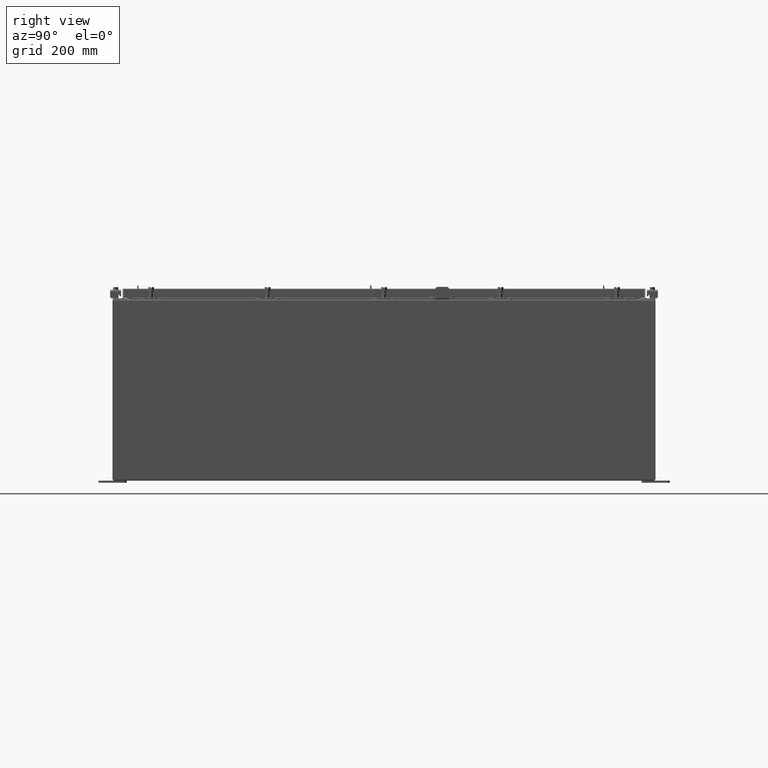
[diagram: clean part render]
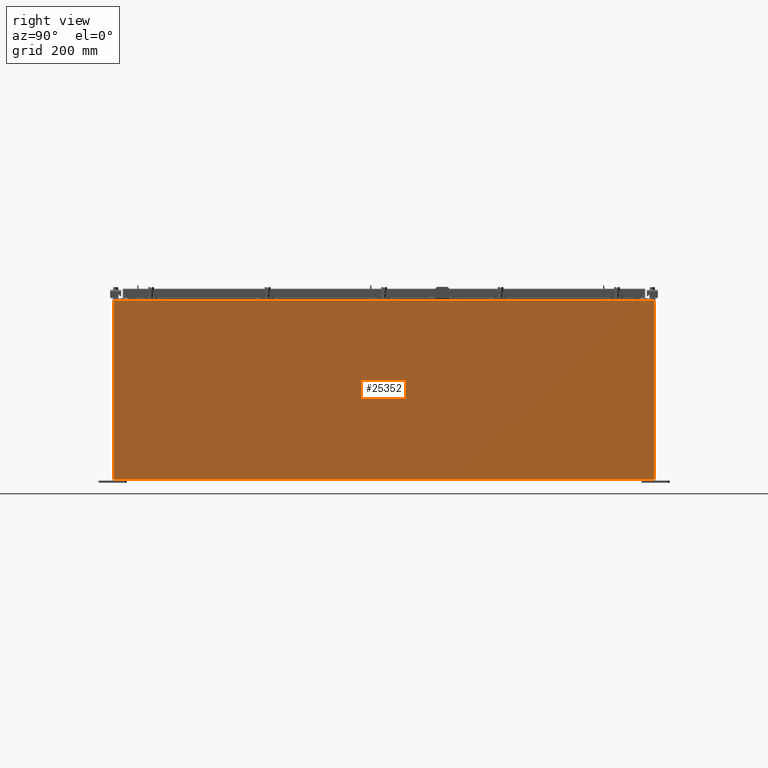
[diagram: same view with one face highlighted and labeled with its STEP entity id]
A machine part, right view. The second image highlights one B-rep face of the part: STEP entity #25352.
In plain terms, the highlighted planar face has unit normal (-1, 0, 0).
Its self-contained STEP definition (entity closure, byte-faithful):
#375 = DIRECTION ( 'NONE',  ( -1.000000000000000000, 0.0000000000000000000, 3.430827668758846700E-015 ) ) ;
#1221 = CARTESIAN_POINT ( 'NONE',  ( 18.00000000000005000, 23.92529999999998900, 15.83760000000001400 ) ) ;
#1409 = CARTESIAN_POINT ( 'NONE',  ( 17.99999999999999600, -23.92529999999998900, -6.228613425554519900E-014 ) ) ;
#1519 = VERTEX_POINT ( 'NONE', #19849 ) ;
#1709 = EDGE_CURVE ( 'NONE', #9912, #8468, #2594, .T. ) ;
#2594 = LINE ( 'NONE', #1409, #18719 ) ;
#2963 = EDGE_CURVE ( 'NONE', #1519, #23339, #9773, .T. ) ;
#3633 = DIRECTION ( 'NONE',  ( -1.566960444969418600E-031, -1.000000000000000000, -4.567295697298285000E-017 ) ) ;
#3634 = ORIENTED_EDGE ( 'NONE', *, *, #2963, .T. ) ;
#3930 = CARTESIAN_POINT ( 'NONE',  ( 17.99999999999999600, -23.92529999999998900, 0.01299999999999901400 ) ) ;
#4755 = EDGE_CURVE ( 'NONE', #23339, #9912, #18630, .T. ) ;
#7445 = VECTOR ( 'NONE', #11802, 39.37007874015748100 ) ;
#8468 = VERTEX_POINT ( 'NONE', #3930 ) ;
#8941 = CARTESIAN_POINT ( 'NONE',  ( 18.00000000000005000, -23.92529999999998900, 15.83760000000000200 ) ) ;
#9773 = LINE ( 'NONE', #13794, #20325 ) ;
#9912 = VERTEX_POINT ( 'NONE', #8941 ) ;
#10237 = VECTOR ( 'NONE', #3633, 39.37007874015748100 ) ;
#10870 = PLANE ( 'NONE',  #16192 ) ;
#10901 = LINE ( 'NONE', #14137, #10237 ) ;
#11802 = DIRECTION ( 'NONE',  ( -0.0000000000000000000, -1.000000000000000000, -0.0000000000000000000 ) ) ;
#11912 = DIRECTION ( 'NONE',  ( -3.430827668758847500E-015, 0.0000000000000000000, -1.000000000000000000 ) ) ;
#11939 = FACE_OUTER_BOUND ( 'NONE', #19812, .T. ) ;
#12331 = ORIENTED_EDGE ( 'NONE', *, *, #26191, .F. ) ;
#13794 = CARTESIAN_POINT ( 'NONE',  ( 17.99999999999999600, 23.92529999999998900, -6.228613425554519900E-014 ) ) ;
#14137 = CARTESIAN_POINT ( 'NONE',  ( 17.99999999999999600, -23.92529999999998900, 0.01300000000000010700 ) ) ;
#15099 = DIRECTION ( 'NONE',  ( 3.430827668758846700E-015, 0.0000000000000000000, 1.000000000000000000 ) ) ;
#15745 = ORIENTED_EDGE ( 'NONE', *, *, #4755, .T. ) ;
#16192 = AXIS2_PLACEMENT_3D ( 'NONE', #25586, #375, #15099 ) ;
#18630 = LINE ( 'NONE', #1221, #7445 ) ;
#18719 = VECTOR ( 'NONE', #11912, 39.37007874015748100 ) ;
#19812 = EDGE_LOOP ( 'NONE', ( #15745, #21307, #12331, #3634 ) ) ;
#19849 = CARTESIAN_POINT ( 'NONE',  ( 17.99999999999999600, 23.92529999999998600, 0.01300000000000229300 ) ) ;
#20325 = VECTOR ( 'NONE', #24275, 39.37007874015748100 ) ;
#21307 = ORIENTED_EDGE ( 'NONE', *, *, #1709, .T. ) ;
#22780 = CARTESIAN_POINT ( 'NONE',  ( 18.00000000000005000, 23.92529999999998600, 15.83760000000001400 ) ) ;
#23339 = VERTEX_POINT ( 'NONE', #22780 ) ;
#24275 = DIRECTION ( 'NONE',  ( 3.430827668758847500E-015, 0.0000000000000000000, 1.000000000000000000 ) ) ;
#25352 = ADVANCED_FACE ( 'NONE', ( #11939 ), #10870, .F. ) ;
#25586 = CARTESIAN_POINT ( 'NONE',  ( 17.99999999999999600, 0.0000000000000000000, -6.228613425554519900E-014 ) ) ;
#26191 = EDGE_CURVE ( 'NONE', #1519, #8468, #10901, .T. ) ;